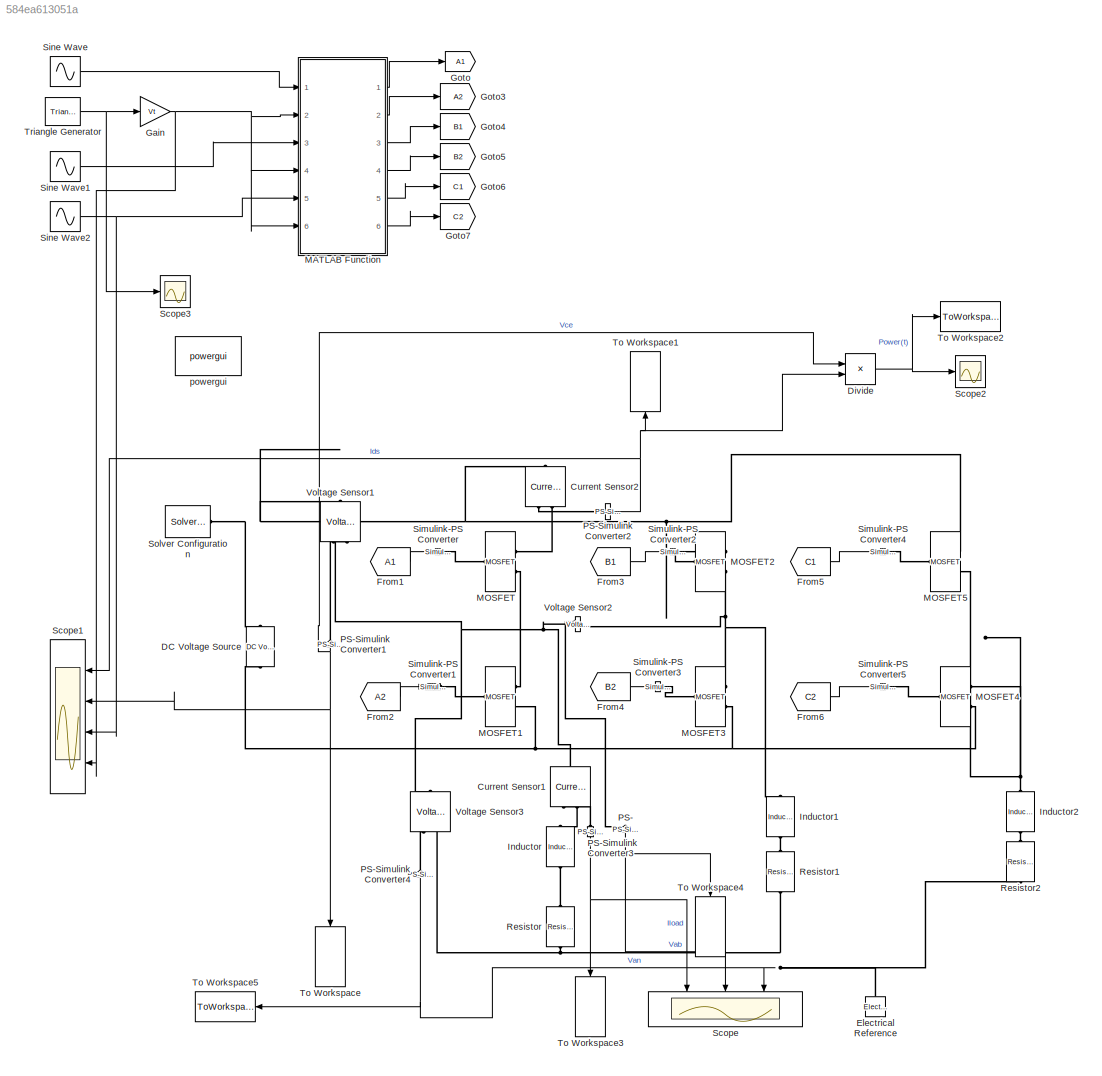
MODEL slx_584ea613051a
KIND model
CONFIG AbsTol = 0.1
CONFIG FixedStep = Ts1
CONFIG MaxStep = auto
CONFIG MinStep = auto
CONFIG RelTol = 1
CONFIG SampleTimeConstraint = Unconstrained
CONFIG Solver = FixedStepAuto
CONFIG SolverMode = Auto
CONFIG SolverName = FixedStepAuto
CONFIG StartTime = 0
CONFIG StopTime = time
BLOCK [Reference] Current Sensor1  REF=fl_lib/Electrical/Electrical Sensors/Current Sensor
  Ports = [0, 0, 0, 0, 0, 1, 2]
  SourceBlock = fl_lib/Electrical/Electrical Sensors/Current Sensor
  SourceType = Current Sensor
BLOCK [Reference] Current Sensor2  REF=fl_lib/Electrical/Electrical Sensors/Current Sensor
  Ports = [0, 0, 0, 0, 0, 1, 2]
  SourceBlock = fl_lib/Electrical/Electrical Sensors/Current Sensor
  SourceType = Current Sensor
BLOCK [Reference] DC Voltage Source  REF=elec_lib/Additional
Components/SPICE-Compatible
Components/Sources/DC Voltage Source
  Ports = [0, 0, 0, 0, 0, 1, 1]
  SourceBlock = elec_lib/Additional\nComponents/SPICE-Compatible\nComponents/Sources/DC Voltage Source
  SourceType = DC Voltage Source
BLOCK [Product] Divide
  InputSameDT = off
  Inputs = **
  OutDataTypeStr = Inherit: Inherit via internal rule
  Ports = [2, 1]
  RndMeth = Floor
  SaturateOnIntegerOverflow = off
BLOCK [Reference] Electrical Reference  REF=fl_lib/Electrical/Electrical Elements/Electrical Reference
  Ports = [0, 0, 0, 0, 0, 1]
  SourceBlock = fl_lib/Electrical/Electrical Elements/Electrical Reference
  SourceType = Electrical Reference
BLOCK [From] From1
  GotoTag = A1
BLOCK [From] From2
  GotoTag = A2
BLOCK [From] From3
  GotoTag = B1
BLOCK [From] From4
  GotoTag = B2
BLOCK [From] From5
  GotoTag = C1
BLOCK [From] From6
  GotoTag = C2
BLOCK [Gain] Gain
  Gain = Vt
  OutDataTypeStr = Inherit: Inherit via internal rule
  ParamDataTypeStr = Inherit: Inherit via internal rule
  SaturateOnIntegerOverflow = off
BLOCK [Goto] Goto
  GotoTag = A1
BLOCK [Goto] Goto3
  GotoTag = A2
BLOCK [Goto] Goto4
  GotoTag = B1
BLOCK [Goto] Goto5
  GotoTag = B2
BLOCK [Goto] Goto6
  GotoTag = C1
BLOCK [Goto] Goto7
  GotoTag = C2
BLOCK [Reference] Inductor  REF=elec_lib/Passive Devices/Inductor
  Ports = [0, 0, 0, 0, 0, 1, 1]
  SourceBlock = elec_lib/Passive Devices/Inductor
  SourceType = Inductor
BLOCK [Reference] Inductor1  REF=elec_lib/Passive Devices/Inductor
  Ports = [0, 0, 0, 0, 0, 1, 1]
  SourceBlock = elec_lib/Passive Devices/Inductor
  SourceType = Inductor
BLOCK [Reference] Inductor2  REF=elec_lib/Passive Devices/Inductor
  Ports = [0, 0, 0, 0, 0, 1, 1]
  SourceBlock = elec_lib/Passive Devices/Inductor
  SourceType = Inductor
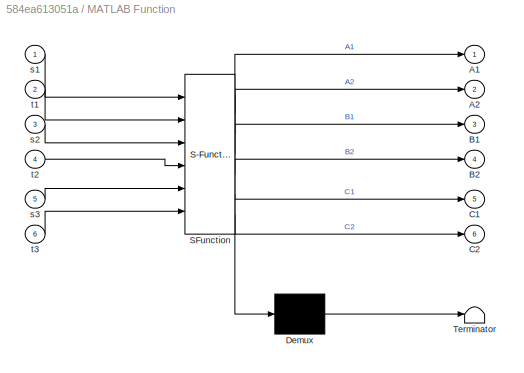
BLOCK [SubSystem] MATLAB Function
  ErrorFcn = Stateflow.Translate.translate
  PermitHierarchicalResolution = ExplicitOnly
  Ports = [6, 6]
  RequestExecContextInheritance = off
  SFBlockType = MATLAB Function
  TreatAsAtomicUnit = on
  Variant = off
BLOCK [Demux] MATLAB Function/ Demux 
  Outputs = 1
  Ports = [1, 1]
BLOCK [S-Function] MATLAB Function/ SFunction 
  EnableBusSupport = on
  FunctionName = sf_sfun
  PortCounts = [6 7]
  Ports = [6, 7]
  SFunctionDeploymentMode = off
  Tag = Stateflow S-Function ThreephaseInverterTrialOut 2
BLOCK [Terminator] MATLAB Function/ Terminator 
BLOCK [Outport] MATLAB Function/A1
  IconDisplay = Port number
BLOCK [Outport] MATLAB Function/A2
  IconDisplay = Port number
  Port = 2
BLOCK [Outport] MATLAB Function/B1
  IconDisplay = Port number
  Port = 3
BLOCK [Outport] MATLAB Function/B2
  IconDisplay = Port number
  Port = 4
BLOCK [Outport] MATLAB Function/C1
  IconDisplay = Port number
  Port = 5
BLOCK [Outport] MATLAB Function/C2
  IconDisplay = Port number
  Port = 6
BLOCK [Inport] MATLAB Function/s1
  IconDisplay = Port number
BLOCK [Inport] MATLAB Function/s2
  IconDisplay = Port number
  Port = 3
BLOCK [Inport] MATLAB Function/s3
  IconDisplay = Port number
  Port = 5
BLOCK [Inport] MATLAB Function/t1
  IconDisplay = Port number
  Port = 2
BLOCK [Inport] MATLAB Function/t2
  IconDisplay = Port number
  Port = 4
BLOCK [Inport] MATLAB Function/t3
  IconDisplay = Port number
  Port = 6
BLOCK [Reference] MOSFET  REF=pe_lib/Semiconductors/Fundamental
Components/MOSFET
  Ports = [0, 0, 0, 0, 0, 1, 2]
  SourceBlock = pe_lib/Semiconductors/Fundamental\nComponents/MOSFET
  SourceType = MOSFET
BLOCK [Reference] MOSFET1  REF=pe_lib/Semiconductors/Fundamental
Components/MOSFET
  Ports = [0, 0, 0, 0, 0, 1, 2]
  SourceBlock = pe_lib/Semiconductors/Fundamental\nComponents/MOSFET
  SourceType = MOSFET
BLOCK [Reference] MOSFET2  REF=pe_lib/Semiconductors/Fundamental
Components/MOSFET
  Ports = [0, 0, 0, 0, 0, 1, 2]
  SourceBlock = pe_lib/Semiconductors/Fundamental\nComponents/MOSFET
  SourceType = MOSFET
BLOCK [Reference] MOSFET3  REF=pe_lib/Semiconductors/Fundamental
Components/MOSFET
  Ports = [0, 0, 0, 0, 0, 1, 2]
  SourceBlock = pe_lib/Semiconductors/Fundamental\nComponents/MOSFET
  SourceType = MOSFET
BLOCK [Reference] MOSFET4  REF=pe_lib/Semiconductors/Fundamental
Components/MOSFET
  Ports = [0, 0, 0, 0, 0, 1, 2]
  SourceBlock = pe_lib/Semiconductors/Fundamental\nComponents/MOSFET
  SourceType = MOSFET
BLOCK [Reference] MOSFET5  REF=pe_lib/Semiconductors/Fundamental
Components/MOSFET
  Ports = [0, 0, 0, 0, 0, 1, 2]
  SourceBlock = pe_lib/Semiconductors/Fundamental\nComponents/MOSFET
  SourceType = MOSFET
BLOCK [Reference] PS-   REF=nesl_utility/PS-Simulink
Converter
  Ports = [0, 1, 0, 0, 0, 1]
  SourceBlock = nesl_utility/PS-Simulink\nConverter
  SourceType = PS-Simulink\nConverter
BLOCK [Reference] PS-Simulink Converter1  REF=nesl_utility/PS-Simulink
Converter
  Ports = [0, 1, 0, 0, 0, 1]
  SourceBlock = nesl_utility/PS-Simulink\nConverter
  SourceType = PS-Simulink\nConverter
BLOCK [Reference] PS-Simulink Converter2  REF=nesl_utility/PS-Simulink
Converter
  Ports = [0, 1, 0, 0, 0, 1]
  SourceBlock = nesl_utility/PS-Simulink\nConverter
  SourceType = PS-Simulink\nConverter
BLOCK [Reference] PS-Simulink Converter3  REF=nesl_utility/PS-Simulink
Converter
  Ports = [0, 1, 0, 0, 0, 1]
  SourceBlock = nesl_utility/PS-Simulink\nConverter
  SourceType = PS-Simulink\nConverter
BLOCK [Reference] PS-Simulink Converter4  REF=nesl_utility/PS-Simulink
Converter
  Ports = [0, 1, 0, 0, 0, 1]
  SourceBlock = nesl_utility/PS-Simulink\nConverter
  SourceType = PS-Simulink\nConverter
BLOCK [Reference] Resistor  REF=elec_lib/Passive Devices/Resistor
  Ports = [0, 0, 0, 0, 0, 1, 1]
  SourceBlock = elec_lib/Passive Devices/Resistor
  SourceType = Resistor
BLOCK [Reference] Resistor1  REF=elec_lib/Passive Devices/Resistor
  Ports = [0, 0, 0, 0, 0, 1, 1]
  SourceBlock = elec_lib/Passive Devices/Resistor
  SourceType = Resistor
BLOCK [Reference] Resistor2  REF=elec_lib/Passive Devices/Resistor
  Ports = [0, 0, 0, 0, 0, 1, 1]
  SourceBlock = elec_lib/Passive Devices/Resistor
  SourceType = Resistor
BLOCK [Scope] Scope
  NumInputPorts = 3
  Ports = [3]
  ScopeSpecificationString = Simulink.scopes.TimeScopeBlockCfg('CurrentConfiguration', extmgr.ConfigurationSet(extmgr.Configuration('Core','General UI',true),extmgr.Configuration('Core','Source UI',true),extmgr.Configuration('Sources','WiredSimulink',true),extmgr.Configuration('Visuals','Time Domain',true,'SerializedDisplays',{struct('MinYLimReal','-27.06979','MaxYLimReal','27.06979','YLabelReal','','MinYLimMag','0.00000','Ma...<+2776ch>
BLOCK [Scope] Scope1
  NumInputPorts = 4
  Ports = [4]
  ScopeSpecificationString = Simulink.scopes.TimeScopeBlockCfg('CurrentConfiguration', extmgr.ConfigurationSet(extmgr.Configuration('Core','General UI',true),extmgr.Configuration('Core','Source UI',true),extmgr.Configuration('Sources','WiredSimulink',true,'DataLoggingVariableName','ScopeData1'),extmgr.Configuration('Visuals','Time Domain',true,'SerializedDisplays',{struct('MinYLimReal','-27.06264','MaxYLimReal','27.07694','YL...<+3437ch>
BLOCK [Scope] Scope2
  Ports = [1]
  ScopeSpecificationString = Simulink.scopes.TimeScopeBlockCfg('CurrentConfiguration', extmgr.ConfigurationSet(extmgr.Configuration('Core','General UI',true),extmgr.Configuration('Core','Source UI',true),extmgr.Configuration('Sources','WiredSimulink',true,'DataLoggingVariableName','ScopeData2'),extmgr.Configuration('Visuals','Time Domain',true,'SerializedDisplays',{struct('MinYLimReal','-0.58661','MaxYLimReal','5.27945','YLab...<+1420ch>
BLOCK [Scope] Scope3
  Ports = [1]
  ScopeSpecificationString = Simulink.scopes.TimeScopeBlockCfg('CurrentConfiguration', extmgr.ConfigurationSet(extmgr.Configuration('Core','General UI',true),extmgr.Configuration('Core','Source UI',true),extmgr.Configuration('Sources','WiredSimulink',true,'DataLoggingVariableName','ScopeData1'),extmgr.Configuration('Visuals','Time Domain',true,'SerializedDisplays',{struct('MinYLimReal','-1.10843','MaxYLimReal','1.12224','YLab...<+1396ch>
BLOCK [Reference] Simulink-PS Converter  REF=nesl_utility/Simulink-PS
Converter
  Ports = [1, 0, 0, 0, 0, 0, 1]
  SourceBlock = nesl_utility/Simulink-PS\nConverter
  SourceType = Simulink-PS\nConverter
BLOCK [Reference] Simulink-PS Converter1  REF=nesl_utility/Simulink-PS
Converter
  Ports = [1, 0, 0, 0, 0, 0, 1]
  SourceBlock = nesl_utility/Simulink-PS\nConverter
  SourceType = Simulink-PS\nConverter
BLOCK [Reference] Simulink-PS Converter2  REF=nesl_utility/Simulink-PS
Converter
  Ports = [1, 0, 0, 0, 0, 0, 1]
  SourceBlock = nesl_utility/Simulink-PS\nConverter
  SourceType = Simulink-PS\nConverter
BLOCK [Reference] Simulink-PS Converter3  REF=nesl_utility/Simulink-PS
Converter
  Ports = [1, 0, 0, 0, 0, 0, 1]
  SourceBlock = nesl_utility/Simulink-PS\nConverter
  SourceType = Simulink-PS\nConverter
BLOCK [Reference] Simulink-PS Converter4  REF=nesl_utility/Simulink-PS
Converter
  Ports = [1, 0, 0, 0, 0, 0, 1]
  SourceBlock = nesl_utility/Simulink-PS\nConverter
  SourceType = Simulink-PS\nConverter
BLOCK [Reference] Simulink-PS Converter5  REF=nesl_utility/Simulink-PS
Converter
  Ports = [1, 0, 0, 0, 0, 0, 1]
  SourceBlock = nesl_utility/Simulink-PS\nConverter
  SourceType = Simulink-PS\nConverter
BLOCK [Sin] Sine Wave
  Amplitude = Vs
  Frequency = f*2*pi
  Ports = [0, 1]
  SampleTime = 0
BLOCK [Sin] Sine Wave1
  Amplitude = Vs
  Frequency = f*2*pi
  Phase = 2/3*pi
  Ports = [0, 1]
  SampleTime = 0
BLOCK [Sin] Sine Wave2
  Amplitude = Vs
  Frequency = f*2*pi
  Phase = -2/3*pi
  Ports = [0, 1]
  SampleTime = 0
BLOCK [Reference] Solver Configuration  REF=nesl_utility/Solver
Configuration
  Ports = [0, 0, 0, 0, 0, 0, 1]
  SourceBlock = nesl_utility/Solver\nConfiguration
  SourceType = Solver\nConfiguration
BLOCK [ToWorkspace] To Workspace
  FixptAsFi = on
  MaxDataPoints = inf
  Ports = [1]
  SampleTime = -1
  Save2DSignal = 2-D array (concatenate along first dimension)
  SaveFormat = Structure With Time
  VariableName = Vce
BLOCK [ToWorkspace] To Workspace1
  FixptAsFi = on
  MaxDataPoints = inf
  Ports = [1]
  SampleTime = -1
  Save2DSignal = 3-D array (concatenate along third dimension)
  SaveFormat = Structure With Time
  VariableName = Ids
BLOCK [ToWorkspace] To Workspace2
  FixptAsFi = on
  MaxDataPoints = inf
  Ports = [1]
  SampleTime = -1
  Save2DSignal = 3-D array (concatenate along third dimension)
  VariableName = Power
BLOCK [ToWorkspace] To Workspace3
  FixptAsFi = on
  MaxDataPoints = inf
  Ports = [1]
  SampleTime = -1
  Save2DSignal = 2-D array (concatenate along first dimension)
  SaveFormat = Structure With Time
  VariableName = Iload
BLOCK [ToWorkspace] To Workspace4
  FixptAsFi = on
  MaxDataPoints = inf
  Ports = [1]
  SampleTime = -1
  Save2DSignal = 2-D array (concatenate along first dimension)
  SaveFormat = Structure With Time
  VariableName = Vab
BLOCK [ToWorkspace] To Workspace5
  FixptAsFi = on
  MaxDataPoints = inf
  Ports = [1]
  SampleTime = -1
  Save2DSignal = 2-D array (concatenate along first dimension)
  SaveFormat = Structure With Time
  VariableName = Va0
BLOCK [Reference] Triangle Generator  REF=powerlib_meascontrol/Pulse & Signal
Generators/Triangle
Generator
  Ports = [0, 1]
  SourceBlock = powerlib_meascontrol/Pulse & Signal\nGenerators/Triangle\nGenerator
  SourceType = Triangle Generator
BLOCK [Reference] Voltage Sensor1  REF=fl_lib/Electrical/Electrical Sensors/Voltage Sensor
  Ports = [0, 0, 0, 0, 0, 1, 2]
  SourceBlock = fl_lib/Electrical/Electrical Sensors/Voltage Sensor
  SourceType = Voltage Sensor
BLOCK [Reference] Voltage Sensor2  REF=fl_lib/Electrical/Electrical Sensors/Voltage Sensor
  Ports = [0, 0, 0, 0, 0, 1, 2]
  SourceBlock = fl_lib/Electrical/Electrical Sensors/Voltage Sensor
  SourceType = Voltage Sensor
BLOCK [Reference] Voltage Sensor3  REF=fl_lib/Electrical/Electrical Sensors/Voltage Sensor
  Ports = [0, 0, 0, 0, 0, 1, 2]
  SourceBlock = fl_lib/Electrical/Electrical Sensors/Voltage Sensor
  SourceType = Voltage Sensor
BLOCK [Reference] powergui  REF=powerlib/powergui
  Ports = []
  Priority = 1
  SourceBlock = powerlib/powergui
  SourceType = PSB option menu block
  UserDataPersistent = on
NET Divide:1 -> Scope2:1, To Workspace2:1
LINE From1:1 -> Simulink-PS Converter:1
LINE From2:1 -> Simulink-PS Converter1:1
LINE From3:1 -> Simulink-PS Converter2:1
LINE From4:1 -> Simulink-PS Converter3:1
LINE From5:1 -> Simulink-PS Converter4:1
LINE From6:1 -> Simulink-PS Converter5:1
NET Gain:1 -> MATLAB Function:2, MATLAB Function:4, MATLAB Function:6, Scope1:4
LINE MATLAB Function:1 -> Goto:1
LINE MATLAB Function:2 -> Goto3:1
LINE MATLAB Function:3 -> Goto4:1
LINE MATLAB Function:4 -> Goto5:1
LINE MATLAB Function:5 -> Goto6:1
LINE MATLAB Function:6 -> Goto7:1
NET PS- :1 -> Scope:2, To Workspace4:1
NET PS-Simulink Converter1:1 -> Divide:1, Scope1:2, To Workspace:1
NET PS-Simulink Converter2:1 -> Divide:2, Scope1:1, To Workspace1:1
NET PS-Simulink Converter3:1 -> Scope:1, To Workspace3:1
NET PS-Simulink Converter4:1 -> Scope:3, To Workspace5:1
LINE Sine Wave1:1 -> MATLAB Function:3
NET Sine Wave2:1 -> MATLAB Function:5, Scope1:3
LINE Sine Wave:1 -> MATLAB Function:1
NET Triangle Generator:1 -> Gain:1, Scope3:1
PNET net1: Current Sensor1:LConn1 -- MOSFET1:RConn1 -- MOSFET:RConn2 -- Voltage Sensor1:RConn2 -- Voltage Sensor2:LConn1 -- Voltage Sensor3:LConn1
PLINE Current Sensor1:RConn1 -- PS-Simulink Converter3:LConn1
PLINE Current Sensor1:RConn2 -- Inductor:LConn1
PNET net2: Current Sensor2:LConn1 -- DC Voltage Source:LConn1 -- MOSFET2:RConn1 -- MOSFET5:RConn1 -- Solver Configuration:RConn1 -- Voltage Sensor1:LConn1
PLINE Current Sensor2:RConn1 -- PS-Simulink Converter2:LConn1
PLINE Current Sensor2:RConn2 -- MOSFET:RConn1
PNET net3: DC Voltage Source:RConn1 -- MOSFET1:RConn2 -- MOSFET3:RConn2 -- MOSFET4:RConn2
PNET net4: Electrical Reference:LConn1 -- Resistor1:RConn1 -- Resistor2:RConn1 -- Resistor:RConn1 -- Voltage Sensor3:RConn2
PNET net5: Inductor1:LConn1 -- MOSFET2:RConn2 -- MOSFET3:RConn1 -- Voltage Sensor2:RConn2
PLINE Inductor1:RConn1 -- Resistor1:LConn1
PNET net6: Inductor2:LConn1 -- MOSFET4:RConn1 -- MOSFET5:RConn2
PLINE Inductor2:RConn1 -- Resistor2:LConn1
PLINE Inductor:RConn1 -- Resistor:LConn1
PLINE MOSFET1:LConn1 -- Simulink-PS Converter1:RConn1
PLINE MOSFET2:LConn1 -- Simulink-PS Converter2:RConn1
PLINE MOSFET3:LConn1 -- Simulink-PS Converter3:RConn1
PLINE MOSFET4:LConn1 -- Simulink-PS Converter5:RConn1
PLINE MOSFET5:LConn1 -- Simulink-PS Converter4:RConn1
PLINE MOSFET:LConn1 -- Simulink-PS Converter:RConn1
PLINE PS- :LConn1 -- Voltage Sensor2:RConn1
PLINE PS-Simulink Converter1:LConn1 -- Voltage Sensor1:RConn1
PLINE PS-Simulink Converter4:LConn1 -- Voltage Sensor3:RConn1
note: NET lines group one-source signal fan-out (src -> all destinations, sorted); 1:1 wires keep LINE; PNET lines group multi-terminal physical nets as a canonical sorted terminal list (undirected conserving connections); 2-terminal nets keep the pairwise PLINE form
CHART MATLAB Function states=1 transitions=1
  STATE_LABEL 'eML_blk_kernel()'
  STATE_LABEL 'SCRIPT:\nfunction [A1, A2, B1, B2,C1, C2] = fcn(s1,t1,s2,t2,s3,t3)\n    if s1>t1 \n        A1=10;\n        A2=0;\n    else \n        A1=0;\n        A2=10;\n    end\n    \n    if s2>t2\n        B1=10;\n        B2=0;\n    else \n        B1=0;\n        B2=10;\n    end\n    \n    if s3>t3\n        C1=10;\n        C2=0;\n    else \n        C1=0;\n        C2=10;\n    end\n    \n   '
